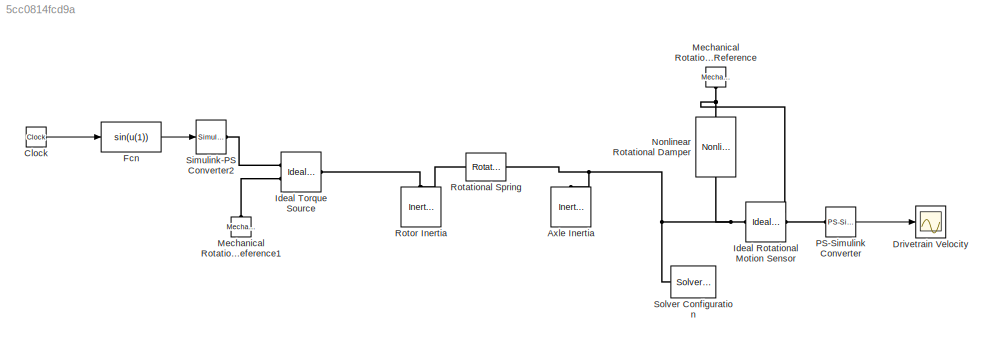
MODEL slx_5cc0814fcd9a
KIND model
BLOCK [Reference] Axle Inertia  REF=fl_lib/Mechanical/Rotational Elements/Inertia
  ClassName = inertia
  ComponentPath = foundation.mechanical.rotational.inertia
  ComponentVariantNames = inertia
  ComponentVariants = foundation.mechanical.rotational.inertia
  LogSimulationData = off
  Ports = [0, 0, 0, 0, 0, 1]
  SchemaVersion = 1
  SourceBlock = fl_lib/Mechanical/Rotational Elements/Inertia
  SourceFile = foundation.mechanical.rotational.inertia
  SourceType = Inertia
  inertia = 2
  inertia_unit = kg*m^2
  t = 0
  t_priority = High
  t_specify = off
  t_unit = N*m
  w = 0
  w_priority = High
  w_specify = on
  w_unit = rad/s
BLOCK [Clock] Clock
BLOCK [Scope] Drivetrain Velocity
  DataFormat = StructureWithTime
  Floating = off
  LimitDataPoints = off
  NumInputPorts = 1
  Ports = [1]
  SampleTime = 0
  ShowLegends = off
  ZoomMode = xonly
BLOCK [Fcn] Fcn
  Expr = sin(u(1))
BLOCK [Reference] Ideal Rotational Motion Sensor  REF=fl_lib/Mechanical/Mechanical Sensors/Ideal Rotational
Motion Sensor
  ClassName = angular_velocity
  ComponentPath = foundation.mechanical.sensors.angular_velocity
  ComponentVariantNames = angular_velocity
  ComponentVariants = foundation.mechanical.sensors.angular_velocity
  LogSimulationData = off
  Ports = [0, 0, 0, 0, 0, 1, 3]
  SchemaVersion = 1
  SourceBlock = fl_lib/Mechanical/Mechanical Sensors/Ideal Rotational\nMotion Sensor
  SourceFile = foundation.mechanical.sensors.angular_velocity
  SourceType = Ideal Rotational\nMotion Sensor
  offset = 0
  offset_unit = rad
BLOCK [Reference] Ideal Torque Source  REF=fl_lib/Mechanical/Mechanical Sources/Ideal Torque Source
  ClassName = torque
  ComponentPath = foundation.mechanical.sources.torque
  ComponentVariantNames = torque
  ComponentVariants = foundation.mechanical.sources.torque
  LogSimulationData = off
  Ports = [0, 0, 0, 0, 0, 1, 2]
  SchemaVersion = 1
  SourceBlock = fl_lib/Mechanical/Mechanical Sources/Ideal Torque Source
  SourceFile = foundation.mechanical.sources.torque
  SourceType = Ideal Torque Source
BLOCK [Reference] Mechanical Rotational Reference  REF=fl_lib/Mechanical/Rotational Elements/Mechanical
Rotational Reference
  ClassName = reference
  ComponentPath = foundation.mechanical.rotational.reference
  ComponentVariantNames = reference
  ComponentVariants = foundation.mechanical.rotational.reference
  LogSimulationData = off
  Ports = [0, 0, 0, 0, 0, 1]
  SchemaVersion = 1
  SourceBlock = fl_lib/Mechanical/Rotational Elements/Mechanical\nRotational Reference
  SourceFile = foundation.mechanical.rotational.reference
  SourceType = Mechanical\nRotational Reference
BLOCK [Reference] Mechanical Rotational Reference1  REF=fl_lib/Mechanical/Rotational Elements/Mechanical
Rotational Reference
  ClassName = reference
  ComponentPath = foundation.mechanical.rotational.reference
  ComponentVariantNames = reference
  ComponentVariants = foundation.mechanical.rotational.reference
  LogSimulationData = off
  Ports = [0, 0, 0, 0, 0, 1]
  SchemaVersion = 1
  SourceBlock = fl_lib/Mechanical/Rotational Elements/Mechanical\nRotational Reference
  SourceFile = foundation.mechanical.rotational.reference
  SourceType = Mechanical\nRotational Reference
BLOCK [Reference] Nonlinear Rotational Damper  REF=sdl_lib/Couplings & Drives/Springs & Dampers/Nonlinear Rotational
Damper
  ClassName = nonlinear_rot_damper
  ComponentPath = sdl.couplings.springs.nonlinear_rot_damper
  ComponentVariantNames = nonlinear_rot_damper
  ComponentVariants = sdl.couplings.springs.nonlinear_rot_damper
  LogSimulationData = off
  Ports = [0, 0, 0, 0, 0, 1, 1]
  SchemaVersion = 1
  SourceBlock = sdl_lib/Couplings & Drives/Springs & Dampers/Nonlinear Rotational\nDamper
  SourceFile = sdl.couplings.springs.nonlinear_rot_damper
  SourceType = Nonlinear Rotational\nDamper
  angular_velocity_vector = [ -1 -0.5 -0.3 -0.1 0.1 0.3 0.5 1 ]
  angular_velocity_vector_unit = rad/s
  coefficient_vector = [ 1e-2 0 1e-3 0 1e-4 ]
  coefficient_vector_unit = N*m/(rad/s)
  extrap_method = 1
  extrap_method_unit = 1
  interp_method = 1
  interp_method_unit = 1
  negative_coefficient_vector = [ 0.001 -1e-5 1e-4 0 0 ]
  negative_coefficient_vector_unit = N*m/(rad/s)
  parameterization = 1
  parameterization_unit = 1
  positive_coefficient_vector = [ 1e-4 0 1e-5 0 1e-6 ]
  positive_coefficient_vector_unit = N*m/(rad/s)
  symmetry = 1
  symmetry_unit = 1
  torque_vector = [ -0.001 -4e-4 -2e-4 -5e-5 5e-5 2e-4 4e-4 0.001 ]
  torque_vector_unit = N*m
BLOCK [Reference] PS-Simulink Converter  REF=nesl_utility/PS-Simulink
Converter
  AffineConversion = off
  Frequencies = []
  LeftPortType = input
  PhysicalDomain = network_engine_domain
  Ports = [0, 1, 0, 0, 0, 1]
  PseudoPeriodic = off
  RightPortType = output
  SourceBlock = nesl_utility/PS-Simulink\nConverter
  SourceType = PS-Simulink\nConverter
  SubClassName = ps_output
  Unit = 1
BLOCK [Reference] Rotational Spring  REF=fl_lib/Mechanical/Rotational Elements/Rotational Spring
  ClassName = spring
  ComponentPath = foundation.mechanical.rotational.spring
  ComponentVariantNames = spring
  ComponentVariants = foundation.mechanical.rotational.spring
  LogSimulationData = off
  Ports = [0, 0, 0, 0, 0, 1, 1]
  SchemaVersion = 1
  SourceBlock = fl_lib/Mechanical/Rotational Elements/Rotational Spring
  SourceFile = foundation.mechanical.rotational.spring
  SourceType = Rotational Spring
  phi = 0
  phi_priority = High
  phi_specify = off
  phi_unit = rad
  spr_rate = 10
  spr_rate_unit = N*m/rad
  t = 0
  t_priority = High
  t_specify = off
  t_unit = N*m
  w = 0
  w_priority = High
  w_specify = off
  w_unit = rad/s
BLOCK [Reference] Rotor Inertia  REF=fl_lib/Mechanical/Rotational Elements/Inertia
  ClassName = inertia
  ComponentPath = foundation.mechanical.rotational.inertia
  ComponentVariantNames = inertia
  ComponentVariants = foundation.mechanical.rotational.inertia
  LogSimulationData = off
  Ports = [0, 0, 0, 0, 0, 1]
  SchemaVersion = 1
  SourceBlock = fl_lib/Mechanical/Rotational Elements/Inertia
  SourceFile = foundation.mechanical.rotational.inertia
  SourceType = Inertia
  inertia = 1.7
  inertia_unit = kg*m^2
  t = 0
  t_priority = High
  t_specify = off
  t_unit = N*m
  w = 0
  w_priority = High
  w_specify = on
  w_unit = rad/s
BLOCK [Reference] Simulink-PS Converter2  REF=nesl_utility/Simulink-PS
Converter
  AffineConversion = off
  Frequencies = []
  InputFilterTimeConstant = .001
  InputFiltering = off
  LeftPortType = input
  NoiseDistribution = none
  NoiseParameters = []
  PhysicalDomain = network_engine_domain
  Ports = [1, 0, 0, 0, 0, 0, 1]
  PseudoPeriodic = off
  RightPortType = output
  SimscapeFilterOrder = 2
  SourceBlock = nesl_utility/Simulink-PS\nConverter
  SourceType = Simulink-PS\nConverter
  SubClassName = ps_input
  UdotUserProvided = 1
  Unit = 1
BLOCK [Reference] Solver Configuration  REF=nesl_utility/Solver
Configuration
  AbsTol = 1e-06
  Accelerate = off
  AutomaticFiltering = off
  DelaysMemoryBudget = 1024
  DoDC = off
  DoFixedCost = off
  EnableSwitchedLinearOptims = on
  FilteringTimeConstant = 0.001
  FrequencyDomain = off
  Harmonics = []
  LeftPortType = input
  LinearAlgebra = Sparse
  LocalSolverChoice = NE_BACKWARD_EULER_ADVANCER
  LocalSolverSampleTime = 0.001
  MaxModeIter = 2
  MaxNonlinIter = 3
  MinStep = 1e-09
  PhysicalDomain = network_engine_domain
  Ports = [0, 0, 0, 0, 0, 0, 1]
  Profile = off
  RelTol = 0.001
  ResidualTolerance = 1e-06
  RightPortType = generic
  SimulateNoise = off
  SourceBlock = nesl_utility/Solver\nConfiguration
  SourceType = Solver\nConfiguration
  SubClassName = solver
  ToWorkspace = off
  Tones = []
  UseCCode = off
  UseLocalSampling = off
  UseLocalSolver = off
LINE Clock:1 -> Fcn:1
LINE Fcn:1 -> Simulink-PS Converter2:1
LINE PS-Simulink Converter:1 -> Drivetrain Velocity:1
PNET net1: Axle Inertia:LConn1 -- Ideal Rotational Motion Sensor:LConn1 -- Nonlinear Rotational Damper:LConn1 -- Rotational Spring:RConn1 -- Solver Configuration:RConn1
PNET net2: Ideal Rotational Motion Sensor:RConn1 -- Mechanical Rotational Reference:LConn1 -- Nonlinear Rotational Damper:RConn1
PLINE Ideal Rotational Motion Sensor:RConn2 -- PS-Simulink Converter:LConn1
PNET net3: Ideal Torque Source:LConn1 -- Rotational Spring:LConn1 -- Rotor Inertia:LConn1
PLINE Ideal Torque Source:RConn1 -- Simulink-PS Converter2:RConn1
PLINE Ideal Torque Source:RConn2 -- Mechanical Rotational Reference1:LConn1
note: PNET lines group multi-terminal physical nets as a canonical sorted terminal list (undirected conserving connections); 2-terminal nets keep the pairwise PLINE form
